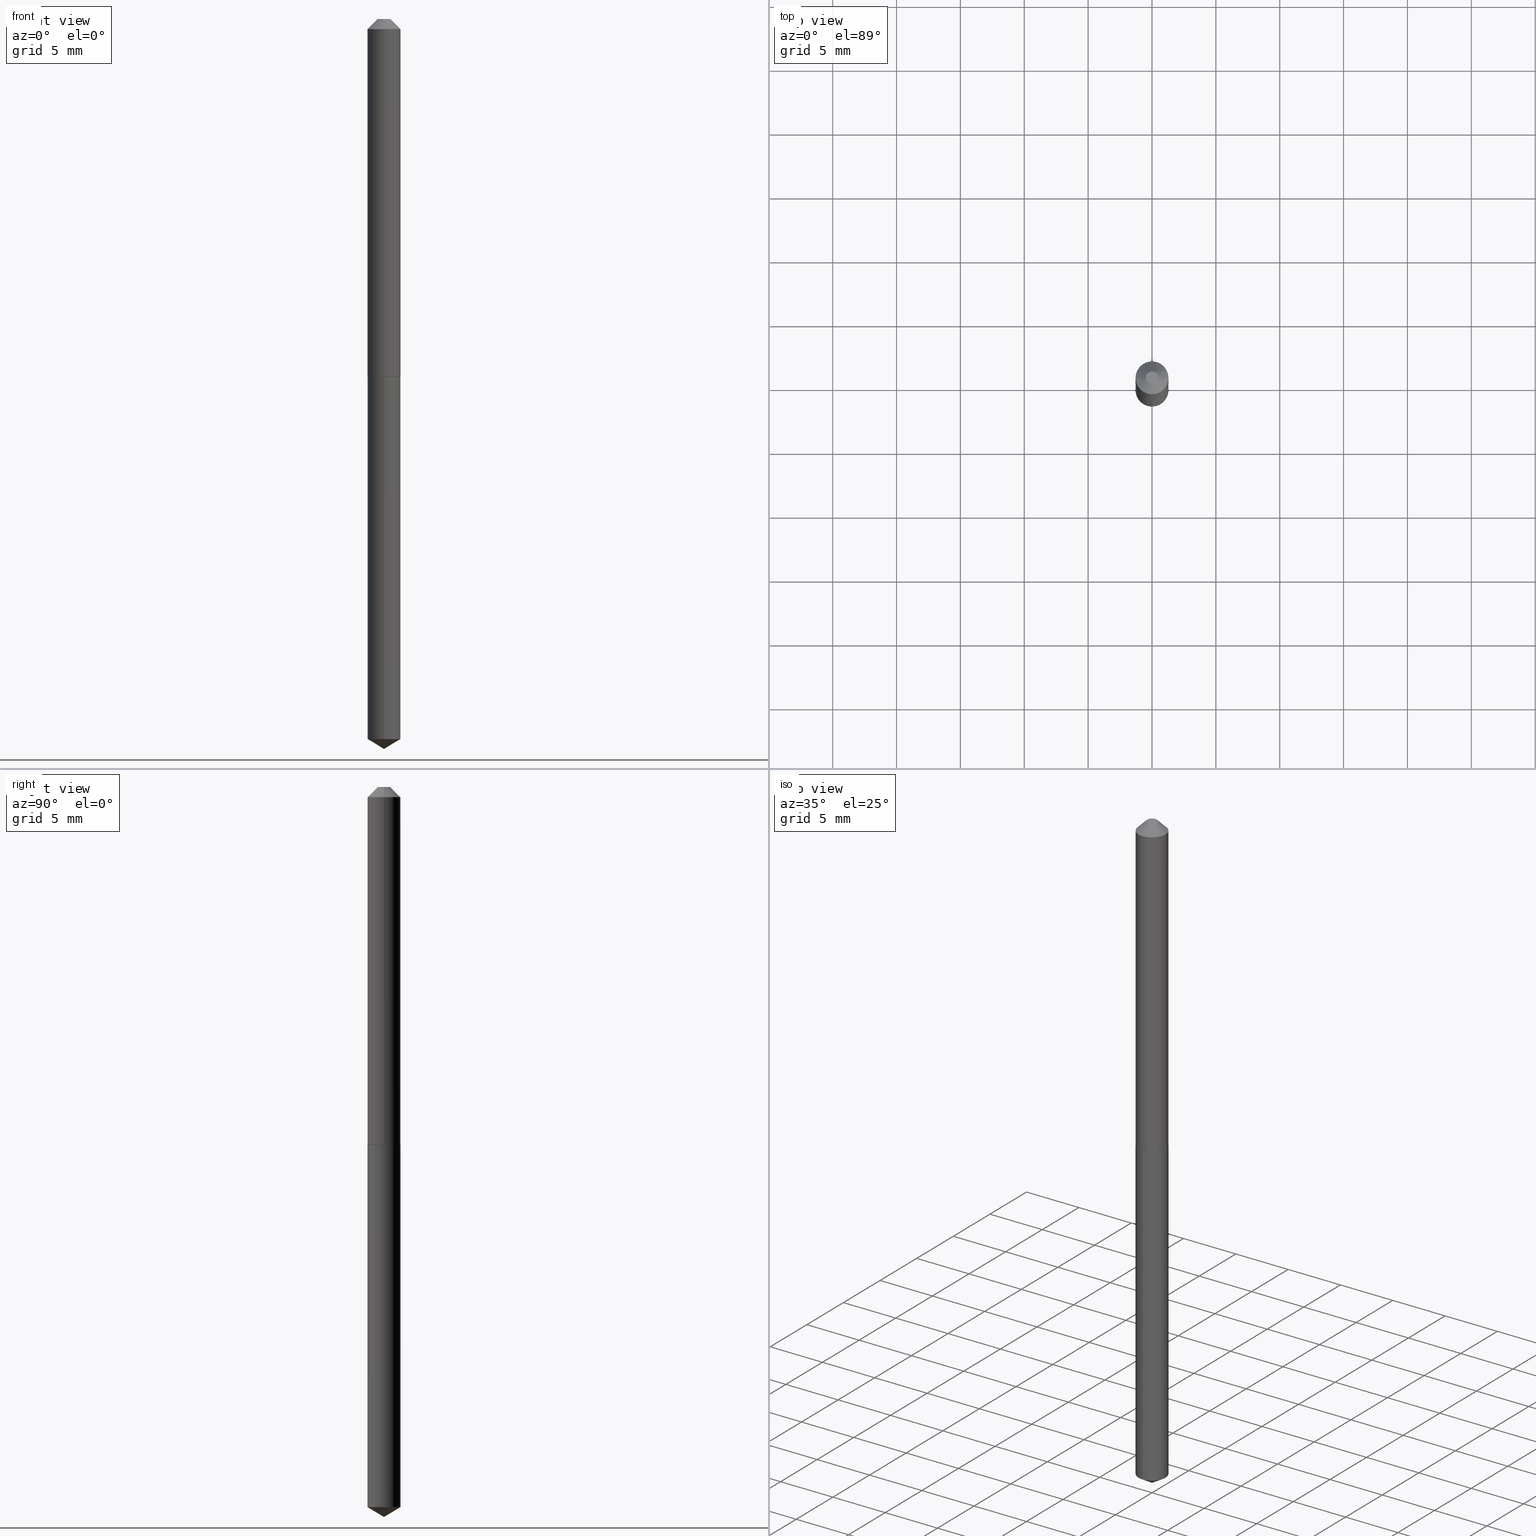
[diagram: canonical four-view strip — front | top / right | iso, engineering-drawing reading convention]
A machine part, canonical four-view strip (front | top / right | iso — engineering-drawing reading convention). The complete STEP part file that produces these views, byte-faithful:
ISO-10303-21;
HEADER;
FILE_DESCRIPTION (( 'STEP AP203' ),
    '1' );
FILE_NAME ('57124.STEP',
    '2024-04-22T22:32:07',
    ( '' ),
    ( '' ),
    'SwSTEP 2.0',
    'SolidWorks 2023',
    '' );
FILE_SCHEMA (( 'CONFIG_CONTROL_DESIGN' ));
ENDSEC;

DATA;
#1 = DIRECTION ( 'NONE',  ( -6.982962677686266711E-15, -1.000000000000000000, 3.468864327941602497E-15 ) ) ;
#2 = ORIENTED_EDGE ( 'NONE', *, *, #175, .F. ) ;
#3 = PRODUCT_RELATED_PRODUCT_CATEGORY ( 'detail', '', ( #45 ) ) ;
#4 = CYLINDRICAL_SURFACE ( 'NONE', #268, 0.05075000000000000344 ) ;
#5 = ORIENTED_EDGE ( 'NONE', *, *, #182, .F. ) ;
#6 = CARTESIAN_POINT ( 'NONE',  ( 7.642090019328601786E-31, -1.091087918388490144E-16, -0.03125000000000020123 ) ) ;
#7 = EDGE_LOOP ( 'NONE', ( #232, #294, #373, #10 ) ) ;
#8 = AXIS2_PLACEMENT_3D ( 'NONE', #245, #93, #213 ) ;
#9 = EDGE_CURVE ( 'NONE', #284, #291, #377, .T. ) ;
#10 = ORIENTED_EDGE ( 'NONE', *, *, #32, .F. ) ;
#11 = EDGE_LOOP ( 'NONE', ( #142, #255, #135, #37 ) ) ;
#12 = PERSON ( 'UNSPECIFIED', 'UNSPECIFIED', 'UNSPECIFIED', ('UNSPECIFIED'), ('UNSPECIFIED'), ('UNSPECIFIED') ) ;
#13 = SHAPE_DEFINITION_REPRESENTATION ( #110, #384 ) ;
#14 = EDGE_LOOP ( 'NONE', ( #73, #366, #287, #353 ) ) ;
#15 = VECTOR ( 'NONE', #379, 39.37007874015748143 ) ;
#16 = APPLICATION_PROTOCOL_DEFINITION ( 'international standard', 'config_control_design', 1994, #137 ) ;
#17 = ORIENTED_EDGE ( 'NONE', *, *, #238, .F. ) ;
#18 = ADVANCED_FACE ( 'NONE', ( #319 ), #228, .T. ) ;
#19 = COORDINATED_UNIVERSAL_TIME_OFFSET ( 5, 0, .BEHIND. ) ;
#20 = ORIENTED_EDGE ( 'NONE', *, *, #243, .T. ) ;
#21 = PERSON_AND_ORGANIZATION_ROLE ( 'creator' ) ;
#22 = ORIENTED_EDGE ( 'NONE', *, *, #42, .F. ) ;
#23 = CIRCLE ( 'NONE', #246, 0.05075000000000000344 ) ;
#24 = VECTOR ( 'NONE', #256, 39.37007874015748143 ) ;
#25 = EDGE_CURVE ( 'NONE', #89, #322, #95, .T. ) ;
#26 = CARTESIAN_POINT ( 'NONE',  ( -9.077627275422741275E-28, 1.296036639453829765E-13, 37.12007874015748143 ) ) ;
#27 = CARTESIAN_POINT ( 'NONE',  ( -0.05075000000000001732, -1.616014434554323559E-15, -0.03125000000000020123 ) ) ;
#28 = DIRECTION ( 'NONE',  ( -2.445468806185136597E-29, 3.491481338843145583E-15, 1.000000000000000000 ) ) ;
#29 = AXIS2_PLACEMENT_3D ( 'NONE', #57, #344, #55 ) ;
#30 = APPROVAL_PERSON_ORGANIZATION ( #198, #195, #351 ) ;
#31 = CARTESIAN_POINT ( 'NONE',  ( 5.502321185612917698E-29, -7.855809567196070656E-15, -2.250000000000000000 ) ) ;
#32 = EDGE_CURVE ( 'NONE', #267, #284, #220, .T. ) ;
#33 = FACE_OUTER_BOUND ( 'NONE', #59, .T. ) ;
#34 = CARTESIAN_POINT ( 'NONE',  ( 3.606004383983051030E-16, 0.05074999999999225270, -2.219506323584351737 ) ) ;
#35 = DIRECTION ( 'NONE',  ( -2.445476082494629808E-29, 3.491470918753809356E-15, 1.000000000000000000 ) ) ;
#36 = VECTOR ( 'NONE', #94, 39.37007874015748143 ) ;
#37 = ORIENTED_EDGE ( 'NONE', *, *, #302, .F. ) ;
#38 = SECURITY_CLASSIFICATION ( '', '', #86 ) ;
#39 = CARTESIAN_POINT ( 'NONE',  ( 0.01950000000000000691, -2.955293880911495878E-16, 1.224646799162445212E-19 ) ) ;
#40 = CARTESIAN_POINT ( 'NONE',  ( 5.427741614416211209E-29, -7.749353260513347876E-15, -2.219506323584351293 ) ) ;
#41 = ORIENTED_EDGE ( 'NONE', *, *, #182, .T. ) ;
#42 = EDGE_CURVE ( 'NONE', #130, #48, #23, .T. ) ;
#43 = DIRECTION ( 'NONE',  ( -2.445476082494629808E-29, 3.491470918753809356E-15, 1.000000000000000000 ) ) ;
#44 = UNCERTAINTY_MEASURE_WITH_UNIT (LENGTH_MEASURE( 1.000000000000000082E-05 ), #185, 'distance_accuracy_value', 'NONE');
#45 = PRODUCT ( '57124', '57124', '', ( #138 ) ) ;
#46 = AXIS2_PLACEMENT_3D ( 'NONE', #159, #35, #163 ) ;
#47 = DATE_AND_TIME ( #56, #119 ) ;
#48 = VERTEX_POINT ( 'NONE', #289 ) ;
#49 = PERSON_AND_ORGANIZATION ( #12, #53 ) ;
#50 = ORIENTED_EDGE ( 'NONE', *, *, #302, .T. ) ;
#51 = CC_DESIGN_PERSON_AND_ORGANIZATION_ASSIGNMENT ( #173, #108, ( #45 ) ) ;
#52 = AXIS2_PLACEMENT_3D ( 'NONE', #144, #169, #375 ) ;
#53 = ORGANIZATION ( 'UNSPECIFIED', 'UNSPECIFIED', '' ) ;
#54 = APPROVAL_STATUS ( 'not_yet_approved' ) ;
#55 = DIRECTION ( 'NONE',  ( 1.000000000000000000, -6.982962677686265922E-15, 4.876176775795935793E-29 ) ) ;
#56 = CALENDAR_DATE ( 2024, 22, 4 ) ;
#57 = CARTESIAN_POINT ( 'NONE',  ( 0.000000000000000000, 0.000000000000000000, 0.000000000000000000 ) ) ;
#58 = ADVANCED_FACE ( 'NONE', ( #262 ), #241, .T. ) ;
#59 = EDGE_LOOP ( 'NONE', ( #235, #230 ) ) ;
#60 = LOCAL_TIME ( 18, 32, 7.000000000000000000, #290 ) ;
#61 = FACE_OUTER_BOUND ( 'NONE', #333, .T. ) ;
#62 = DIRECTION ( 'NONE',  ( 1.000000000000000000, -6.982962677686265133E-15, 0.000000000000000000 ) ) ;
#63 = DIRECTION ( 'NONE',  ( 1.000000000000000000, -6.982962677686265922E-15, 4.876176775795935793E-29 ) ) ;
#64 = VECTOR ( 'NONE', #192, 39.37007874015748143 ) ;
#65 = DIRECTION ( 'NONE',  ( -2.445468806185136597E-29, 3.491481338843145583E-15, 1.000000000000000000 ) ) ;
#66 = DIRECTION ( 'NONE',  ( -2.445476082494629808E-29, 3.491470918753809356E-15, 1.000000000000000000 ) ) ;
#67 = APPROVAL ( #54, 'UNSPECIFIED' ) ;
#68 = LINE ( 'NONE', #72, #64 ) ;
#69 = ORIENTED_EDGE ( 'NONE', *, *, #175, .T. ) ;
#70 = CARTESIAN_POINT ( 'NONE',  ( 0.05075000000000014222, -4.198506309958881744E-15, -1.100999999999999979 ) ) ;
#71 = AXIS2_PLACEMENT_3D ( 'NONE', #299, #122, #388 ) ;
#72 = CARTESIAN_POINT ( 'NONE',  ( -0.05075000000000001732, 2.452765640537290907E-16, -0.03125000000000020123 ) ) ;
#73 = ORIENTED_EDGE ( 'NONE', *, *, #74, .F. ) ;
#74 = EDGE_CURVE ( 'NONE', #257, #48, #174, .T. ) ;
#75 = DIRECTION ( 'NONE',  ( -6.982962677686266711E-15, -1.000000000000000000, 2.691475855826860001E-15 ) ) ;
#76 = VERTEX_POINT ( 'NONE', #27 ) ;
#77 = ORIENTED_EDGE ( 'NONE', *, *, #111, .T. ) ;
#78 = CIRCLE ( 'NONE', #153, 0.05075000000000000344 ) ;
#79 = CALENDAR_DATE ( 2024, 22, 4 ) ;
#80 = ORIENTED_EDGE ( 'NONE', *, *, #42, .T. ) ;
#81 = PERSON_AND_ORGANIZATION_ROLE ( 'design_supplier' ) ;
#82 = DIRECTION ( 'NONE',  ( -2.445476082494629808E-29, 3.491470918753809356E-15, 1.000000000000000000 ) ) ;
#83 = DATE_AND_TIME ( #112, #278 ) ;
#84 = DIRECTION ( 'NONE',  ( -1.000000000000000000, 6.982962677686265133E-15, 0.000000000000000000 ) ) ;
#85 = AXIS2_PLACEMENT_3D ( 'NONE', #6, #186, #222 ) ;
#86 = SECURITY_CLASSIFICATION_LEVEL ( 'unclassified' ) ;
#87 = ORIENTED_EDGE ( 'NONE', *, *, #277, .T. ) ;
#88 = CC_DESIGN_PERSON_AND_ORGANIZATION_ASSIGNMENT ( #202, #317, ( #38 ) ) ;
#89 = VERTEX_POINT ( 'NONE', #181 ) ;
#90 = LINE ( 'NONE', #152, #165 ) ;
#91 = APPROVAL_PERSON_ORGANIZATION ( #315, #67, #293 ) ;
#92 = DIRECTION ( 'NONE',  ( -2.438088387897960049E-29, 3.491481338843145188E-15, 1.000000000000000000 ) ) ;
#93 = DIRECTION ( 'NONE',  ( -2.445468806185136597E-29, 3.491481338843145583E-15, 1.000000000000000000 ) ) ;
#94 = DIRECTION ( 'NONE',  ( -2.445468806185136877E-29, 3.491481338843145188E-15, 1.000000000000000000 ) ) ;
#95 = CIRCLE ( 'NONE', #210, 0.05025000000000016953 ) ;
#96 = FACE_OUTER_BOUND ( 'NONE', #323, .T. ) ;
#97 = EDGE_CURVE ( 'NONE', #206, #308, #90, .T. ) ;
#98 = FACE_OUTER_BOUND ( 'NONE', #285, .T. ) ;
#99 = LINE ( 'NONE', #368, #253 ) ;
#100 = ORIENTED_EDGE ( 'NONE', *, *, #25, .T. ) ;
#101 = DIRECTION ( 'NONE',  ( -2.445468806185136597E-29, 3.491481338843145583E-15, 1.000000000000000000 ) ) ;
#102 = VECTOR ( 'NONE', #386, 39.37007874015748143 ) ;
#103 = ORIENTED_EDGE ( 'NONE', *, *, #312, .T. ) ;
#104 = DIRECTION ( 'NONE',  ( 2.445468806185136597E-29, -3.491481338843145583E-15, -1.000000000000000000 ) ) ;
#105 = ADVANCED_FACE ( 'NONE', ( #96 ), #209, .F. ) ;
#106 = VERTEX_POINT ( 'NONE', #327 ) ;
#107 = DIRECTION ( 'NONE',  ( -6.982962677686266711E-15, -1.000000000000000000, 5.382951711653720002E-15 ) ) ;
#108 = PERSON_AND_ORGANIZATION_ROLE ( 'design_owner' ) ;
#109 = ORIENTED_EDGE ( 'NONE', *, *, #191, .F. ) ;
#110 = PRODUCT_DEFINITION_SHAPE ( 'NONE', 'NONE',  #356 ) ;
#111 = EDGE_CURVE ( 'NONE', #267, #76, #240, .T. ) ;
#112 = CALENDAR_DATE ( 2024, 22, 4 ) ;
#113 = CARTESIAN_POINT ( 'NONE',  ( 2.693683890012927652E-29, -3.845866694735724612E-15, -1.101499999999999924 ) ) ;
#114 = APPROVAL_STATUS ( 'not_yet_approved' ) ;
#115 = ORIENTED_EDGE ( 'NONE', *, *, #238, .T. ) ;
#116 = PERSON_AND_ORGANIZATION_ROLE ( 'creator' ) ;
#117 = CC_DESIGN_PERSON_AND_ORGANIZATION_ASSIGNMENT ( #120, #116, ( #356 ) ) ;
#118 = ORIENTED_EDGE ( 'NONE', *, *, #97, .F. ) ;
#119 = LOCAL_TIME ( 18, 32, 7.000000000000000000, #205 ) ;
#120 = PERSON_AND_ORGANIZATION ( #12, #53 ) ;
#121 = DIRECTION ( 'NONE',  ( -2.445468806185136597E-29, 3.491481338843145583E-15, 1.000000000000000000 ) ) ;
#122 = DIRECTION ( 'NONE',  ( 2.438088387897960049E-29, -3.491481338843145188E-15, -1.000000000000000000 ) ) ;
#123 = CARTESIAN_POINT ( 'NONE',  ( 2.692461155609835411E-29, -3.844120954066303109E-15, -1.100999999999999979 ) ) ;
#124 = AXIS2_PLACEMENT_3D ( 'NONE', #298, #212, #62 ) ;
#125 = CIRCLE ( 'NONE', #160, 0.05075000000000000344 ) ;
#126 = CARTESIAN_POINT ( 'NONE',  ( -3.543853558925511236E-16, -0.05075000000000384759, -1.101499999999999924 ) ) ;
#127 = CARTESIAN_POINT ( 'NONE',  ( 0.05075000000000014222, -4.198506309958881744E-15, -1.100999999999999979 ) ) ;
#128 = DIRECTION ( 'NONE',  ( -2.445468806185136597E-29, 3.491481338843145583E-15, 1.000000000000000000 ) ) ;
#129 = AXIS2_PLACEMENT_3D ( 'NONE', #376, #374, #167 ) ;
#130 = VERTEX_POINT ( 'NONE', #126 ) ;
#131 = ADVANCED_FACE ( 'NONE', ( #270 ), #301, .T. ) ;
#132 = CARTESIAN_POINT ( 'NONE',  ( -0.05025000000000016953, -3.486169742842162159E-15, -1.101499999999999924 ) ) ;
#133 = CONICAL_SURFACE ( 'NONE', #350, 0.05075000000000014222, 0.7853981633973885490 ) ;
#134 = APPROVAL_PERSON_ORGANIZATION ( #264, #208, #321 ) ;
#135 = ORIENTED_EDGE ( 'NONE', *, *, #9, .T. ) ;
#136 = EDGE_LOOP ( 'NONE', ( #100, #199, #207, #139 ) ) ;
#137 = APPLICATION_CONTEXT ( 'configuration controlled 3d designs of mechanical parts and assemblies' ) ;
#138 = MECHANICAL_CONTEXT ( 'NONE', #137, 'mechanical' ) ;
#139 = ORIENTED_EDGE ( 'NONE', *, *, #166, .F. ) ;
#140 = ADVANCED_FACE ( 'NONE', ( #324 ), #357, .T. ) ;
#141 = APPLICATION_CONTEXT ( 'configuration controlled 3d designs of mechanical parts and assemblies' ) ;
#142 = ORIENTED_EDGE ( 'NONE', *, *, #111, .F. ) ;
#143 = APPLICATION_PROTOCOL_DEFINITION ( 'international standard', 'config_control_design', 1994, #141 ) ;
#144 = CARTESIAN_POINT ( 'NONE',  ( 2.692461155609835411E-29, -3.844120954066303109E-15, -1.100999999999999979 ) ) ;
#145 = ADVANCED_FACE ( 'NONE', ( #61 ), #275, .F. ) ;
#146 = CALENDAR_DATE ( 2024, 22, 4 ) ;
#147 = DIRECTION ( 'NONE',  ( 2.445468806185136597E-29, -3.491481338843145583E-15, -1.000000000000000000 ) ) ;
#148 = CARTESIAN_POINT ( 'NONE',  ( 0.05075000000000008671, -3.543853558925785858E-16, 2.474659713716441605E-30 ) ) ;
#149 = AXIS2_PLACEMENT_3D ( 'NONE', #193, #104, #248 ) ;
#150 = CARTESIAN_POINT ( 'NONE',  ( 2.692461155609835411E-29, -3.844120954066303109E-15, -1.100999999999999979 ) ) ;
#151 = DIRECTION ( 'NONE',  ( 2.445476082494629808E-29, -3.491470918753808961E-15, -1.000000000000000000 ) ) ;
#152 = CARTESIAN_POINT ( 'NONE',  ( 5.502305155903103402E-29, -7.855832522652879307E-15, -2.250000000000000000 ) ) ;
#153 = AXIS2_PLACEMENT_3D ( 'NONE', #40, #43, #306 ) ;
#154 = DIRECTION ( 'NONE',  ( 1.000000000000000000, -6.982962677686270655E-15, 0.000000000000000000 ) ) ;
#155 = MANIFOLD_SOLID_BREP ( 'Body-Move/Copy2[1]', #226 ) ;
#156 = CC_DESIGN_PERSON_AND_ORGANIZATION_ASSIGNMENT ( #49, #21, ( #300 ) ) ;
#157 = CARTESIAN_POINT ( 'NONE',  ( -0.05075000000000014222, -3.483520515668050958E-15, -1.100999999999999979 ) ) ;
#158 = MANIFOLD_SOLID_BREP ( 'Body-Move/Copy2[2]', #234 ) ;
#159 = CARTESIAN_POINT ( 'NONE',  ( 2.693683890012927652E-29, -3.845866694735724612E-15, -1.101499999999999924 ) ) ;
#160 = AXIS2_PLACEMENT_3D ( 'NONE', #330, #66, #326 ) ;
#161 = CARTESIAN_POINT ( 'NONE',  ( -9.077627275422741275E-28, 1.296036639453829765E-13, 37.12007874015748143 ) ) ;
#162 = DIRECTION ( 'NONE',  ( -2.445468806185136597E-29, 3.491481338843145583E-15, 1.000000000000000000 ) ) ;
#163 = DIRECTION ( 'NONE',  ( -6.982962677686266711E-15, -1.000000000000000000, 2.691475855826860001E-15 ) ) ;
#164 = FACE_OUTER_BOUND ( 'NONE', #354, .T. ) ;
#165 = VECTOR ( 'NONE', #184, 39.37007874015748143 ) ;
#166 = EDGE_CURVE ( 'NONE', #89, #284, #362, .T. ) ;
#167 = DIRECTION ( 'NONE',  ( 1.000000000000000000, 0.000000000000000000, 0.000000000000000000 ) ) ;
#168 = DATE_AND_TIME ( #146, #352 ) ;
#169 = DIRECTION ( 'NONE',  ( -2.445468806185136597E-29, 3.491481338843145583E-15, 1.000000000000000000 ) ) ;
#170 = PERSON_AND_ORGANIZATION ( #12, #53 ) ;
#171 = DIRECTION ( 'NONE',  ( -6.982962677686266711E-15, -1.000000000000000000, 2.691475855826860001E-15 ) ) ;
#172 = CIRCLE ( 'NONE', #85, 0.05075000000000001732 ) ;
#173 = PERSON_AND_ORGANIZATION ( #12, #53 ) ;
#174 = LINE ( 'NONE', #263, #15 ) ;
#175 = EDGE_CURVE ( 'NONE', #258, #291, #242, .T. ) ;
#176 = EDGE_LOOP ( 'NONE', ( #2, #109, #203, #50 ) ) ;
#177 = ORIENTED_EDGE ( 'NONE', *, *, #277, .F. ) ;
#178 = ADVANCED_FACE ( 'NONE', ( #33 ), #385, .F. ) ;
#179 = CARTESIAN_POINT ( 'NONE',  ( 0.05075000000000001732, -4.572790652257543188E-16, -0.03125000000000020123 ) ) ;
#180 = CARTESIAN_POINT ( 'NONE',  ( -0.05075000000000008671, 3.606004383982514604E-16, -2.496359558304368800E-30 ) ) ;
#181 = CARTESIAN_POINT ( 'NONE',  ( 0.05025000000000016953, -4.196760569289461029E-15, -1.101499999999999924 ) ) ;
#182 = EDGE_CURVE ( 'NONE', #291, #76, #305, .T. ) ;
#183 = CC_DESIGN_APPROVAL ( #67, ( #38 ) ) ;
#184 = DIRECTION ( 'NONE',  ( -5.985567269335939702E-15, -0.8571673007021100021, 0.5150380749100580413 ) ) ;
#185 =( CONVERSION_BASED_UNIT ( 'INCH', #276 ) LENGTH_UNIT ( ) NAMED_UNIT ( #367 ) );
#186 = DIRECTION ( 'NONE',  ( -2.445468806185136597E-29, 3.491481338843145583E-15, 1.000000000000000000 ) ) ;
#187 = ORIENTED_EDGE ( 'NONE', *, *, #74, .T. ) ;
#188 = AXIS2_PLACEMENT_3D ( 'NONE', #123, #65, #358 ) ;
#189 = AXIS2_PLACEMENT_3D ( 'NONE', #304, #340, #107 ) ;
#190 = CARTESIAN_POINT ( 'NONE',  ( -3.543853558925237600E-16, -0.05075000000000774725, -2.219506323584350849 ) ) ;
#191 = EDGE_CURVE ( 'NONE', #106, #258, #272, .T. ) ;
#192 = DIRECTION ( 'NONE',  ( -0.7071067811865453523, 2.468850131082234184E-15, -0.7071067811865496822 ) ) ;
#193 = CARTESIAN_POINT ( 'NONE',  ( 7.642090019328601786E-31, -1.091087918388490144E-16, -0.03125000000000020123 ) ) ;
#194 = ORIENTED_EDGE ( 'NONE', *, *, #312, .F. ) ;
#195 = APPROVAL ( #114, 'UNSPECIFIED' ) ;
#196 = AXIS2_PLACEMENT_3D ( 'NONE', #359, #92, #217 ) ;
#197 = ORIENTED_EDGE ( 'NONE', *, *, #9, .F. ) ;
#198 = PERSON_AND_ORGANIZATION ( #12, #53 ) ;
#199 = ORIENTED_EDGE ( 'NONE', *, *, #204, .T. ) ;
#200 = DATE_TIME_ROLE ( 'classification_date' ) ;
#201 = ORIENTED_EDGE ( 'NONE', *, *, #191, .T. ) ;
#202 = PERSON_AND_ORGANIZATION ( #12, #53 ) ;
#203 = ORIENTED_EDGE ( 'NONE', *, *, #341, .T. ) ;
#204 = EDGE_CURVE ( 'NONE', #322, #267, #271, .T. ) ;
#205 = COORDINATED_UNIVERSAL_TIME_OFFSET ( 5, 0, .BEHIND. ) ;
#206 = VERTEX_POINT ( 'NONE', #31 ) ;
#207 = ORIENTED_EDGE ( 'NONE', *, *, #387, .F. ) ;
#208 = APPROVAL ( #313, 'UNSPECIFIED' ) ;
#209 = PLANE ( 'NONE',  #215 ) ;
#210 = AXIS2_PLACEMENT_3D ( 'NONE', #260, #121, #237 ) ;
#211 = AXIS2_PLACEMENT_3D ( 'NONE', #372, #162, #309 ) ;
#212 = DIRECTION ( 'NONE',  ( -2.445468806185136597E-29, 3.491481338843145583E-15, 1.000000000000000000 ) ) ;
#213 = DIRECTION ( 'NONE',  ( 1.000000000000000000, -6.982962677686267499E-15, 4.876158468089368575E-29 ) ) ;
#214 = FACE_OUTER_BOUND ( 'NONE', #7, .T. ) ;
#215 = AXIS2_PLACEMENT_3D ( 'NONE', #269, #151, #274 ) ;
#216 = AXIS2_PLACEMENT_3D ( 'NONE', #26, #355, #239 ) ;
#217 = DIRECTION ( 'NONE',  ( 1.000000000000000000, -6.982962677686265922E-15, 4.876176775795935793E-29 ) ) ;
#218 = CYLINDRICAL_SURFACE ( 'NONE', #46, 0.05075000000000000344 ) ;
#219 = CC_DESIGN_DATE_AND_TIME_ASSIGNMENT ( #343, #233, ( #356 ) ) ;
#220 = CIRCLE ( 'NONE', #52, 0.05075000000000014222 ) ;
#221 = DIRECTION ( 'NONE',  ( -2.445476082494629808E-29, 3.491470918753809356E-15, 1.000000000000000000 ) ) ;
#222 = DIRECTION ( 'NONE',  ( 1.000000000000000000, -6.982962677686265133E-15, 0.000000000000000000 ) ) ;
#223 = ADVANCED_FACE ( 'NONE', ( #214 ), #133, .T. ) ;
#224 =( LENGTH_UNIT ( ) NAMED_UNIT ( * ) SI_UNIT ( $, .METRE. ) );
#225 = COORDINATED_UNIVERSAL_TIME_OFFSET ( 5, 0, .BEHIND. ) ;
#226 = CLOSED_SHELL ( 'NONE', ( #265, #292, #254, #273, #105 ) ) ;
#227 =( GEOMETRIC_REPRESENTATION_CONTEXT ( 3 ) GLOBAL_UNCERTAINTY_ASSIGNED_CONTEXT ( ( #44 ) ) GLOBAL_UNIT_ASSIGNED_CONTEXT ( ( #185, #303, #280 ) ) REPRESENTATION_CONTEXT ( 'NONE', 'WORKASPACE' ) );
#228 = CYLINDRICAL_SURFACE ( 'NONE', #29, 0.05075000000000008671 ) ;
#229 = APPROVAL_DATE_TIME ( #231, #195 ) ;
#230 = ORIENTED_EDGE ( 'NONE', *, *, #361, .F. ) ;
#231 = DATE_AND_TIME ( #261, #296 ) ;
#232 = ORIENTED_EDGE ( 'NONE', *, *, #204, .F. ) ;
#233 = DATE_TIME_ROLE ( 'creation_date' ) ;
#234 = CLOSED_SHELL ( 'NONE', ( #320, #131, #140, #178, #223, #18, #58, #145 ) ) ;
#235 = ORIENTED_EDGE ( 'NONE', *, *, #25, .F. ) ;
#236 = CC_DESIGN_APPROVAL ( #195, ( #356 ) ) ;
#237 = DIRECTION ( 'NONE',  ( 1.000000000000000000, -6.982962677686265133E-15, 0.000000000000000000 ) ) ;
#238 = EDGE_CURVE ( 'NONE', #258, #106, #252, .T. ) ;
#239 = DIRECTION ( 'NONE',  ( -6.982962677686266711E-15, -1.000000000000000000, 3.468864327941602497E-15 ) ) ;
#240 = LINE ( 'NONE', #180, #36 ) ;
#241 = CONICAL_SURFACE ( 'NONE', #259, 0.05075000000000001732, 0.7853981633974452814 ) ;
#242 = LINE ( 'NONE', #179, #363 ) ;
#243 = EDGE_CURVE ( 'NONE', #48, #130, #125, .T. ) ;
#244 = DIRECTION ( 'NONE',  ( 0.7071067811865052732, -2.468850131081814115E-15, 0.7071067811865897612 ) ) ;
#245 = CARTESIAN_POINT ( 'NONE',  ( -2.994835545909338814E-48, 4.275831445896991422E-34, 1.224646799147358199E-19 ) ) ;
#246 = AXIS2_PLACEMENT_3D ( 'NONE', #113, #82, #171 ) ;
#247 = CIRCLE ( 'NONE', #189, 0.05075000000000000344 ) ;
#248 = DIRECTION ( 'NONE',  ( -1.000000000000000000, 6.982962677686265133E-15, 0.000000000000000000 ) ) ;
#249 = EDGE_LOOP ( 'NONE', ( #118, #87, #194 ) ) ;
#250 = CARTESIAN_POINT ( 'NONE',  ( 2.693683890012927652E-29, -3.845866694735724612E-15, -1.101499999999999924 ) ) ;
#251 = EDGE_LOOP ( 'NONE', ( #346, #77, #5, #197 ) ) ;
#252 = CIRCLE ( 'NONE', #8, 0.01950000000000000691 ) ;
#253 = VECTOR ( 'NONE', #370, 39.37007874015748143 ) ;
#254 = ADVANCED_FACE ( 'NONE', ( #295 ), #288, .T. ) ;
#255 = ORIENTED_EDGE ( 'NONE', *, *, #32, .T. ) ;
#256 = DIRECTION ( 'NONE',  ( -2.445476082494629808E-29, 3.491470918753808961E-15, 1.000000000000000000 ) ) ;
#257 = VERTEX_POINT ( 'NONE', #34 ) ;
#258 = VERTEX_POINT ( 'NONE', #39 ) ;
#259 = AXIS2_PLACEMENT_3D ( 'NONE', #349, #147, #84 ) ;
#260 = CARTESIAN_POINT ( 'NONE',  ( 2.693683890012927652E-29, -3.845866694735724612E-15, -1.101499999999999924 ) ) ;
#261 = CALENDAR_DATE ( 2024, 22, 4 ) ;
#262 = FACE_OUTER_BOUND ( 'NONE', #176, .T. ) ;
#263 = CARTESIAN_POINT ( 'NONE',  ( 3.606004383982777887E-16, 0.05074999999999616623, -1.101500000000000146 ) ) ;
#264 = PERSON_AND_ORGANIZATION ( #12, #53 ) ;
#265 = ADVANCED_FACE ( 'NONE', ( #98 ), #218, .T. ) ;
#266 = AXIS2_PLACEMENT_3D ( 'NONE', #325, #128, #63 ) ;
#267 = VERTEX_POINT ( 'NONE', #365 ) ;
#268 = AXIS2_PLACEMENT_3D ( 'NONE', #250, #221, #75 ) ;
#269 = CARTESIAN_POINT ( 'NONE',  ( 2.693683890012927652E-29, -3.845866694735724612E-15, -1.101499999999999924 ) ) ;
#270 = FACE_OUTER_BOUND ( 'NONE', #251, .T. ) ;
#271 = LINE ( 'NONE', #157, #102 ) ;
#272 = CIRCLE ( 'NONE', #334, 0.01950000000000000691 ) ;
#273 = ADVANCED_FACE ( 'NONE', ( #332 ), #4, .T. ) ;
#274 = DIRECTION ( 'NONE',  ( 6.982962677686265922E-15, 1.000000000000000000, -3.491470918753808961E-15 ) ) ;
#275 = PLANE ( 'NONE',  #71 ) ;
#276 = LENGTH_MEASURE_WITH_UNIT ( LENGTH_MEASURE( 0.02539999999999999897 ), #224 );
#277 = EDGE_CURVE ( 'NONE', #206, #257, #99, .T. ) ;
#278 = LOCAL_TIME ( 18, 32, 7.000000000000000000, #347 ) ;
#279 = DIRECTION ( 'NONE',  ( 1.000000000000000000, -6.982962677686270655E-15, 0.000000000000000000 ) ) ;
#280 =( NAMED_UNIT ( * ) SI_UNIT ( $, .STERADIAN. ) SOLID_ANGLE_UNIT ( ) );
#281 = DIRECTION ( 'NONE',  ( -2.445476082494629808E-29, 3.491470918753809356E-15, 1.000000000000000000 ) ) ;
#282 = AXIS2_PLACEMENT_3D ( 'NONE', #307, #101, #279 ) ;
#283 = CARTESIAN_POINT ( 'NONE',  ( -3.543853558925511236E-16, -0.05075000000000384759, -1.101499999999999924 ) ) ;
#284 = VERTEX_POINT ( 'NONE', #70 ) ;
#285 = EDGE_LOOP ( 'NONE', ( #103, #187, #22, #371 ) ) ;
#286 = APPROVAL_DATE_TIME ( #168, #67 ) ;
#287 = ORIENTED_EDGE ( 'NONE', *, *, #337, .T. ) ;
#288 = CONICAL_SURFACE ( 'NONE', #216, 65.52281426576827528, 1.029744258676653423 ) ;
#289 = CARTESIAN_POINT ( 'NONE',  ( 3.606004383983053002E-16, 0.05074999999999615929, -1.101500000000000146 ) ) ;
#290 = COORDINATED_UNIVERSAL_TIME_OFFSET ( 5, 0, .BEHIND. ) ;
#291 = VERTEX_POINT ( 'NONE', #331 ) ;
#292 = ADVANCED_FACE ( 'NONE', ( #336 ), #335, .T. ) ;
#293 = APPROVAL_ROLE ( '' ) ;
#294 = ORIENTED_EDGE ( 'NONE', *, *, #361, .T. ) ;
#295 = FACE_OUTER_BOUND ( 'NONE', #381, .T. ) ;
#296 = LOCAL_TIME ( 18, 32, 7.000000000000000000, #225 ) ;
#297 = DIRECTION ( 'NONE',  ( 0.7071067811865453523, -7.319954787623248157E-15, -0.7071067811865496822 ) ) ;
#298 = CARTESIAN_POINT ( 'NONE',  ( 7.642090019328601786E-31, -1.091087918388490144E-16, -0.03125000000000020123 ) ) ;
#299 = CARTESIAN_POINT ( 'NONE',  ( -1.497417772954669407E-48, 2.137915722948495711E-34, 6.123233995736790996E-20 ) ) ;
#300 = PRODUCT_DEFINITION_FORMATION_WITH_SPECIFIED_SOURCE ( 'ANY', '', #45, .NOT_KNOWN. ) ;
#301 = CYLINDRICAL_SURFACE ( 'NONE', #266, 0.05075000000000008671 ) ;
#302 = EDGE_CURVE ( 'NONE', #76, #291, #172, .T. ) ;
#303 =( NAMED_UNIT ( * ) PLANE_ANGLE_UNIT ( ) SI_UNIT ( $, .RADIAN. ) );
#304 = CARTESIAN_POINT ( 'NONE',  ( 5.427741614416211209E-29, -7.749353260513347876E-15, -2.219506323584351293 ) ) ;
#305 = CIRCLE ( 'NONE', #124, 0.05075000000000001732 ) ;
#306 = DIRECTION ( 'NONE',  ( -6.982962677686266711E-15, -1.000000000000000000, 5.382951711653720002E-15 ) ) ;
#307 = CARTESIAN_POINT ( 'NONE',  ( 2.692461155609835411E-29, -3.844120954066303109E-15, -1.100999999999999979 ) ) ;
#308 = VERTEX_POINT ( 'NONE', #190 ) ;
#309 = DIRECTION ( 'NONE',  ( 1.000000000000000000, -6.982962677686265133E-15, 0.000000000000000000 ) ) ;
#310 = VECTOR ( 'NONE', #244, 39.37007874015748143 ) ;
#311 = ORIENTED_EDGE ( 'NONE', *, *, #341, .F. ) ;
#312 = EDGE_CURVE ( 'NONE', #308, #257, #78, .T. ) ;
#313 = APPROVAL_STATUS ( 'not_yet_approved' ) ;
#314 = ORIENTED_EDGE ( 'NONE', *, *, #97, .T. ) ;
#315 = PERSON_AND_ORGANIZATION ( #12, #53 ) ;
#316 = DIRECTION ( 'NONE',  ( -2.445468806185136877E-29, 3.491481338843145188E-15, 1.000000000000000000 ) ) ;
#317 = PERSON_AND_ORGANIZATION_ROLE ( 'classification_officer' ) ;
#318 = AXIS2_PLACEMENT_3D ( 'NONE', #161, #281, #1 ) ;
#319 = FACE_OUTER_BOUND ( 'NONE', #11, .T. ) ;
#320 = ADVANCED_FACE ( 'NONE', ( #164 ), #369, .T. ) ;
#321 = APPROVAL_ROLE ( '' ) ;
#322 = VERTEX_POINT ( 'NONE', #132 ) ;
#323 = EDGE_LOOP ( 'NONE', ( #80, #20 ) ) ;
#324 = FACE_OUTER_BOUND ( 'NONE', #136, .T. ) ;
#325 = CARTESIAN_POINT ( 'NONE',  ( 0.000000000000000000, 0.000000000000000000, 0.000000000000000000 ) ) ;
#326 = DIRECTION ( 'NONE',  ( -6.982962677686266711E-15, -1.000000000000000000, 2.691475855826860001E-15 ) ) ;
#327 = CARTESIAN_POINT ( 'NONE',  ( -0.01950000000000000691, 1.907221681343056497E-16, 1.224646799135930453E-19 ) ) ;
#328 = CIRCLE ( 'NONE', #211, 0.05025000000000016953 ) ;
#329 = CC_DESIGN_DATE_AND_TIME_ASSIGNMENT ( #47, #200, ( #38 ) ) ;
#330 = CARTESIAN_POINT ( 'NONE',  ( 2.693683890012927652E-29, -3.845866694735724612E-15, -1.101499999999999924 ) ) ;
#331 = CARTESIAN_POINT ( 'NONE',  ( 0.05075000000000001732, -4.634941477314271441E-16, -0.03125000000000020123 ) ) ;
#332 = FACE_OUTER_BOUND ( 'NONE', #14, .T. ) ;
#333 = EDGE_LOOP ( 'NONE', ( #201, #115 ) ) ;
#334 = AXIS2_PLACEMENT_3D ( 'NONE', #382, #28, #360 ) ;
#335 = CONICAL_SURFACE ( 'NONE', #318, 65.52281426576827528, 1.029744258676653423 ) ;
#336 = FACE_OUTER_BOUND ( 'NONE', #249, .T. ) ;
#337 = EDGE_CURVE ( 'NONE', #308, #130, #339, .T. ) ;
#338 = ORIENTED_EDGE ( 'NONE', *, *, #378, .F. ) ;
#339 = LINE ( 'NONE', #283, #24 ) ;
#340 = DIRECTION ( 'NONE',  ( -2.445476082494629808E-29, 3.491470918753809356E-15, 1.000000000000000000 ) ) ;
#341 = EDGE_CURVE ( 'NONE', #106, #76, #68, .T. ) ;
#342 = CC_DESIGN_SECURITY_CLASSIFICATION ( #38, ( #300 ) ) ;
#343 = DATE_AND_TIME ( #79, #60 ) ;
#344 = DIRECTION ( 'NONE',  ( -2.445468806185136597E-29, 3.491481338843145583E-15, 1.000000000000000000 ) ) ;
#345 = APPROVAL_DATE_TIME ( #83, #208 ) ;
#346 = ORIENTED_EDGE ( 'NONE', *, *, #387, .T. ) ;
#347 = COORDINATED_UNIVERSAL_TIME_OFFSET ( 5, 0, .BEHIND. ) ;
#348 = DESIGN_CONTEXT ( 'detailed design', #141, 'design' ) ;
#349 = CARTESIAN_POINT ( 'NONE',  ( 7.642090019328601786E-31, -1.091087918388490144E-16, -0.03125000000000020123 ) ) ;
#350 = AXIS2_PLACEMENT_3D ( 'NONE', #150, #389, #154 ) ;
#351 = APPROVAL_ROLE ( '' ) ;
#352 = LOCAL_TIME ( 18, 32, 7.000000000000000000, #19 ) ;
#353 = ORIENTED_EDGE ( 'NONE', *, *, #243, .F. ) ;
#354 = EDGE_LOOP ( 'NONE', ( #17, #69, #41, #311 ) ) ;
#355 = DIRECTION ( 'NONE',  ( -2.445476082494629808E-29, 3.491470918753809356E-15, 1.000000000000000000 ) ) ;
#356 = PRODUCT_DEFINITION ( 'UNKNOWN', '', #300, #348 ) ;
#357 = CONICAL_SURFACE ( 'NONE', #188, 0.05075000000000014222, 0.7853981633973885490 ) ;
#358 = DIRECTION ( 'NONE',  ( 1.000000000000000000, -6.982962677686270655E-15, 0.000000000000000000 ) ) ;
#359 = CARTESIAN_POINT ( 'NONE',  ( 2.693683890012927652E-29, -3.845866694735724612E-15, -1.101499999999999924 ) ) ;
#360 = DIRECTION ( 'NONE',  ( 1.000000000000000000, -6.982962677686267499E-15, 4.876158468089368575E-29 ) ) ;
#361 = EDGE_CURVE ( 'NONE', #322, #89, #328, .T. ) ;
#362 = LINE ( 'NONE', #127, #310 ) ;
#363 = VECTOR ( 'NONE', #297, 39.37007874015748143 ) ;
#364 = CC_DESIGN_APPROVAL ( #208, ( #300 ) ) ;
#365 = CARTESIAN_POINT ( 'NONE',  ( -0.05075000000000014222, -3.483520515668050958E-15, -1.100999999999999979 ) ) ;
#366 = ORIENTED_EDGE ( 'NONE', *, *, #378, .T. ) ;
#367 = DIMENSIONAL_EXPONENTS ( 1.000000000000000000, 0.000000000000000000, 0.000000000000000000, 0.000000000000000000, 0.000000000000000000, 0.000000000000000000, 0.000000000000000000 ) ;
#368 = CARTESIAN_POINT ( 'NONE',  ( 5.502321326174550150E-29, -7.855809567196072233E-15, -2.250000000000000000 ) ) ;
#369 = CONICAL_SURFACE ( 'NONE', #149, 0.05075000000000001732, 0.7853981633974452814 ) ;
#370 = DIRECTION ( 'NONE',  ( 6.090539988449775280E-15, 0.8571673007021136659, 0.5150380749100520461 ) ) ;
#371 = ORIENTED_EDGE ( 'NONE', *, *, #337, .F. ) ;
#372 = CARTESIAN_POINT ( 'NONE',  ( 2.693683890012927652E-29, -3.845866694735724612E-15, -1.101499999999999924 ) ) ;
#373 = ORIENTED_EDGE ( 'NONE', *, *, #166, .T. ) ;
#374 = DIRECTION ( 'NONE',  ( 0.000000000000000000, 0.000000000000000000, 1.000000000000000000 ) ) ;
#375 = DIRECTION ( 'NONE',  ( 1.000000000000000000, -6.982962677686270655E-15, 0.000000000000000000 ) ) ;
#376 = CARTESIAN_POINT ( 'NONE',  ( 0.000000000000000000, 0.000000000000000000, 0.000000000000000000 ) ) ;
#377 = LINE ( 'NONE', #148, #380 ) ;
#378 = EDGE_CURVE ( 'NONE', #257, #308, #247, .T. ) ;
#379 = DIRECTION ( 'NONE',  ( -2.445476082494629808E-29, 3.491470918753808961E-15, 1.000000000000000000 ) ) ;
#380 = VECTOR ( 'NONE', #316, 39.37007874015748143 ) ;
#381 = EDGE_LOOP ( 'NONE', ( #177, #314, #338 ) ) ;
#382 = CARTESIAN_POINT ( 'NONE',  ( -2.994835545909338814E-48, 4.275831445896991422E-34, 1.224646799147358199E-19 ) ) ;
#383 = CC_DESIGN_PERSON_AND_ORGANIZATION_ASSIGNMENT ( #170, #81, ( #300 ) ) ;
#384 = ADVANCED_BREP_SHAPE_REPRESENTATION ( '57124', ( #155, #158, #129 ), #227 ) ;
#385 = PLANE ( 'NONE',  #196 ) ;
#386 = DIRECTION ( 'NONE',  ( -0.7071067811865052732, 7.493145998870201121E-15, 0.7071067811865897612 ) ) ;
#387 = EDGE_CURVE ( 'NONE', #284, #267, #390, .T. ) ;
#388 = DIRECTION ( 'NONE',  ( -1.000000000000000000, 6.982962677686265922E-15, -4.876176775795935793E-29 ) ) ;
#389 = DIRECTION ( 'NONE',  ( -2.445468806185136597E-29, 3.491481338843145583E-15, 1.000000000000000000 ) ) ;
#390 = CIRCLE ( 'NONE', #282, 0.05075000000000014222 ) ;
ENDSEC;
END-ISO-10303-21;
